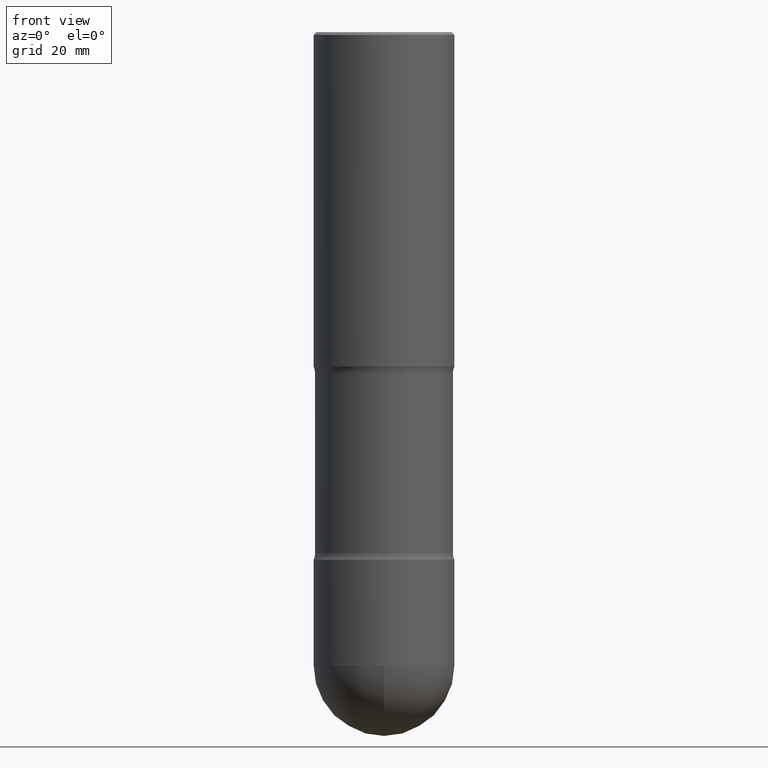
[diagram: clean part render]
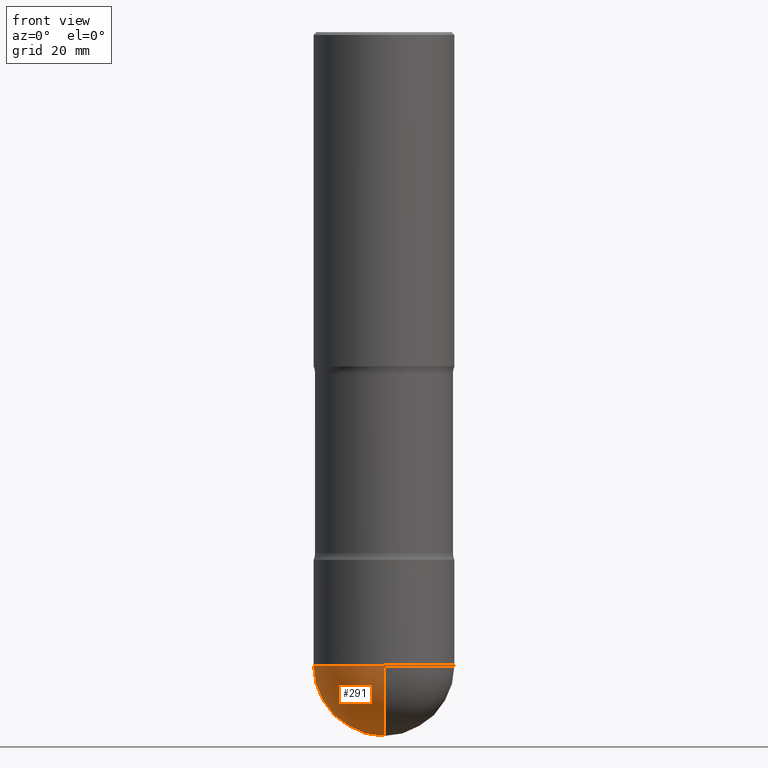
[diagram: same view with one face highlighted and labeled with its STEP entity id]
A machine part, front view. The second image highlights one B-rep face of the part: STEP entity #291.
In plain terms, the highlighted spherical surface has radius 12.7 mm.
Its self-contained STEP definition (entity closure, byte-faithful):
#6 = CARTESIAN_POINT ( 'NONE',  ( -0.4999999999999993339, -1.084964684392748411E-14, -4.499999999999999112 ) ) ;
#13 = EDGE_CURVE ( 'NONE', #148, #179, #529, .T. ) ;
#20 = CARTESIAN_POINT ( 'NONE',  ( 1.100460962783311244E-28, -1.571166602479415374E-14, -4.499999999999999112 ) ) ;
#23 = CIRCLE ( 'NONE', #289, 0.4999999999999993339 ) ;
#40 = DIRECTION ( 'NONE',  ( -6.982962677686265922E-15, -1.000000000000000000, 3.278217592397116651E-15 ) ) ;
#48 = CIRCLE ( 'NONE', #65, 0.4999999999999998335 ) ;
#55 = DIRECTION ( 'NONE',  ( -1.000000000000000000, 6.982962677686265922E-15, -4.883557194083112340E-29 ) ) ;
#60 = EDGE_CURVE ( 'NONE', #148, #434, #48, .T. ) ;
#61 = DIRECTION ( 'NONE',  ( 1.000000000000000000, -6.982962677686264344E-15, 0.000000000000000000 ) ) ;
#65 = AXIS2_PLACEMENT_3D ( 'NONE', #92, #263, #471 ) ;
#77 = DIRECTION ( 'NONE',  ( 1.000000000000000000, -6.982962677686265922E-15, 4.883557194083112901E-29 ) ) ;
#92 = CARTESIAN_POINT ( 'NONE',  ( 1.087633468445620528E-28, -1.589536304466625962E-14, -4.500000000000000000 ) ) ;
#100 = EDGE_CURVE ( 'NONE', #434, #399, #273, .T. ) ;
#105 = DIRECTION ( 'NONE',  ( -2.445468806185136597E-29, 3.491481338843145583E-15, 1.000000000000000000 ) ) ;
#107 = CARTESIAN_POINT ( 'NONE',  ( 1.100460962783311244E-28, -1.571166602479415374E-14, -4.499999999999999112 ) ) ;
#117 = AXIS2_PLACEMENT_3D ( 'NONE', #107, #457, #61 ) ;
#121 = FACE_OUTER_BOUND ( 'NONE', #249, .T. ) ;
#148 = VERTEX_POINT ( 'NONE', #415 ) ;
#167 = EDGE_CURVE ( 'NONE', #399, #179, #23, .T. ) ;
#175 = ORIENTED_EDGE ( 'NONE', *, *, #13, .T. ) ;
#179 = VERTEX_POINT ( 'NONE', #359 ) ;
#191 = DIRECTION ( 'NONE',  ( 1.000000000000000000, -6.982962677686264344E-15, 0.000000000000000000 ) ) ;
#238 = DIRECTION ( 'NONE',  ( -6.982962677686265922E-15, -1.000000000000000000, 0.000000000000000000 ) ) ;
#249 = EDGE_LOOP ( 'NONE', ( #550, #175, #510, #530 ) ) ;
#255 = CARTESIAN_POINT ( 'NONE',  ( 1.087633468445620528E-28, -1.589536304466625962E-14, -4.500000000000000000 ) ) ;
#263 = DIRECTION ( 'NONE',  ( 1.000000000000000000, -7.105427357601001070E-15, 4.926315508542082329E-29 ) ) ;
#273 = CIRCLE ( 'NONE', #117, 0.4999999999999993339 ) ;
#280 = CARTESIAN_POINT ( 'NONE',  ( 1.087633468445620528E-28, -1.589536304466625962E-14, -4.500000000000000000 ) ) ;
#289 = AXIS2_PLACEMENT_3D ( 'NONE', #20, #105, #191 ) ;
#291 = ADVANCED_FACE ( 'NONE', ( #121 ), #470, .T. ) ;
#317 = AXIS2_PLACEMENT_3D ( 'NONE', #280, #55, #238 ) ;
#359 = CARTESIAN_POINT ( 'NONE',  ( -3.491481338843020943E-15, -0.5000000000000154321, -4.499999999999998224 ) ) ;
#399 = VERTEX_POINT ( 'NONE', #6 ) ;
#415 = CARTESIAN_POINT ( 'NONE',  ( 1.207768993031928718E-28, -1.767171988406651324E-14, -5.000000000000000000 ) ) ;
#434 = VERTEX_POINT ( 'NONE', #513 ) ;
#457 = DIRECTION ( 'NONE',  ( -2.445468806185136597E-29, 3.491481338843145583E-15, 1.000000000000000000 ) ) ;
#470 = SPHERICAL_SURFACE ( 'NONE', #493, 0.4999999999999998335 ) ;
#471 = DIRECTION ( 'NONE',  ( 7.105427357601001070E-15, 1.000000000000000000, 0.000000000000000000 ) ) ;
#493 = AXIS2_PLACEMENT_3D ( 'NONE', #255, #77, #40 ) ;
#510 = ORIENTED_EDGE ( 'NONE', *, *, #167, .F. ) ;
#513 = CARTESIAN_POINT ( 'NONE',  ( 3.552713678800606637E-15, 0.4999999999999837352, -4.500000000000000888 ) ) ;
#529 = CIRCLE ( 'NONE', #317, 0.4999999999999998335 ) ;
#530 = ORIENTED_EDGE ( 'NONE', *, *, #100, .F. ) ;
#550 = ORIENTED_EDGE ( 'NONE', *, *, #60, .F. ) ;